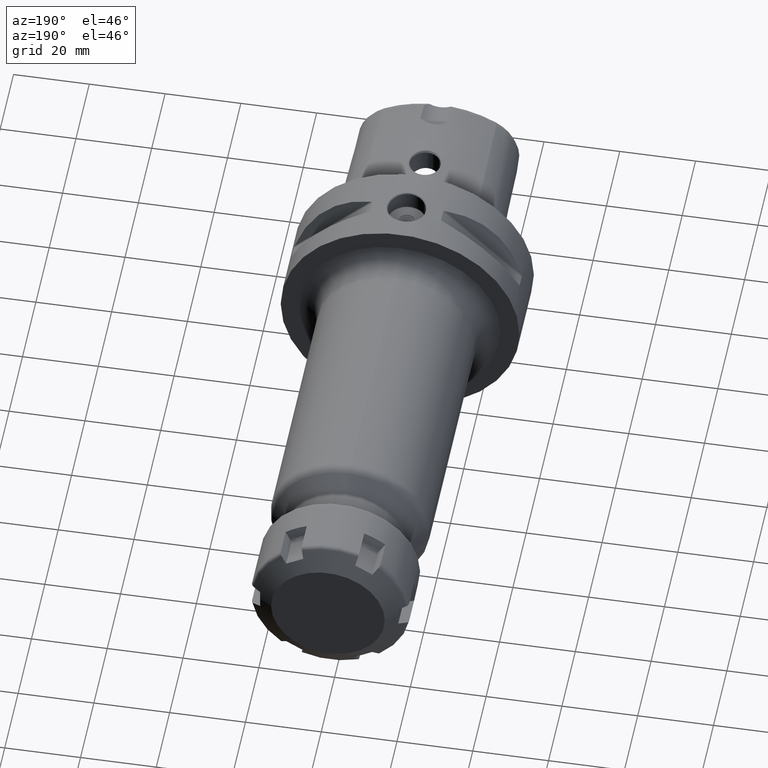
[diagram: clean part render]
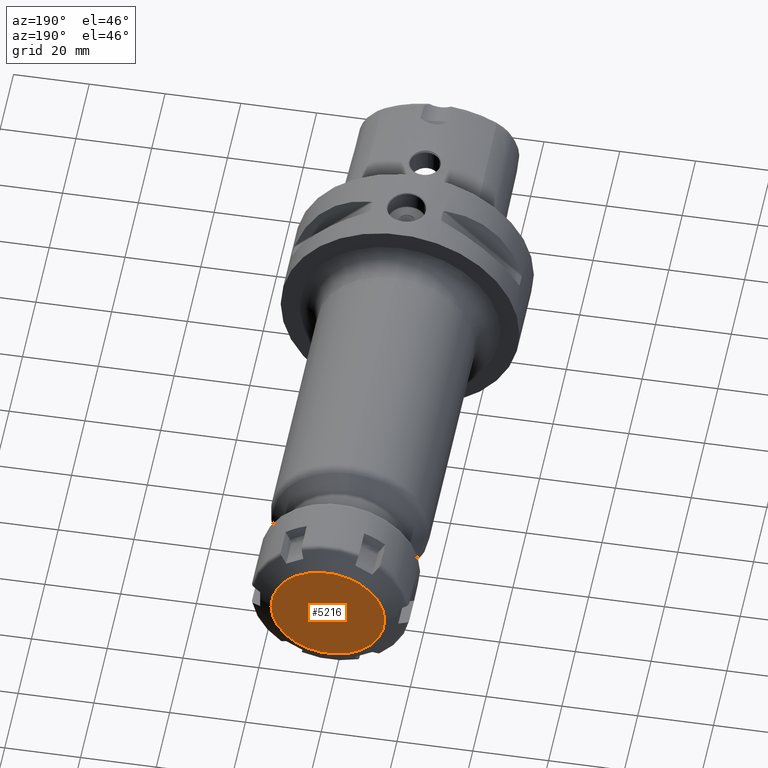
[diagram: same view with one face highlighted and labeled with its STEP entity id]
A machine part, auxiliary view. The second image highlights one B-rep face of the part: STEP entity #5216.
In plain terms, the highlighted planar face has unit normal (0, 1, 0).
Its self-contained STEP definition (entity closure, byte-faithful):
#4371=CARTESIAN_POINT('',(2.E1,-2.266909448450E-14,0.E0));
#4372=DIRECTION('',(-1.E0,0.E0,0.E0));
#4373=DIRECTION('',(0.E0,1.E0,0.E0));
#4374=AXIS2_PLACEMENT_3D('',#4371,#4372,#4373);
#4693=CARTESIAN_POINT('',(2.E1,-2.266909448450E-14,0.E0));
#4694=DIRECTION('',(1.E0,0.E0,0.E0));
#4695=DIRECTION('',(0.E0,1.E0,0.E0));
#4696=AXIS2_PLACEMENT_3D('',#4693,#4694,#4695);
#5103=CARTESIAN_POINT('',(2.E1,1.5E1,0.E0));
#5104=CARTESIAN_POINT('',(2.E1,-1.5E1,0.E0));
#5105=VERTEX_POINT('',#5103);
#5106=VERTEX_POINT('',#5104);
#5205=CARTESIAN_POINT('',(2.E1,-2.266909448450E-14,0.E0));
#5206=DIRECTION('',(1.E0,0.E0,0.E0));
#5207=DIRECTION('',(0.E0,-1.E0,0.E0));
#5208=AXIS2_PLACEMENT_3D('',#5205,#5206,#5207);
#5209=PLANE('',#5208);
#5211=ORIENTED_EDGE('',*,*,#5210,.T.);
#5213=ORIENTED_EDGE('',*,*,#5212,.F.);
#5214=EDGE_LOOP('',(#5211,#5213));
#5215=FACE_OUTER_BOUND('',#5214,.F.);
#5216=ADVANCED_FACE('',(#5215),#5209,.T.);
#4375=CIRCLE('',#4374,1.5E1);
#4697=CIRCLE('',#4696,1.5E1);
#5210=EDGE_CURVE('',#5105,#5106,#4375,.T.);
#5212=EDGE_CURVE('',#5105,#5106,#4697,.T.);